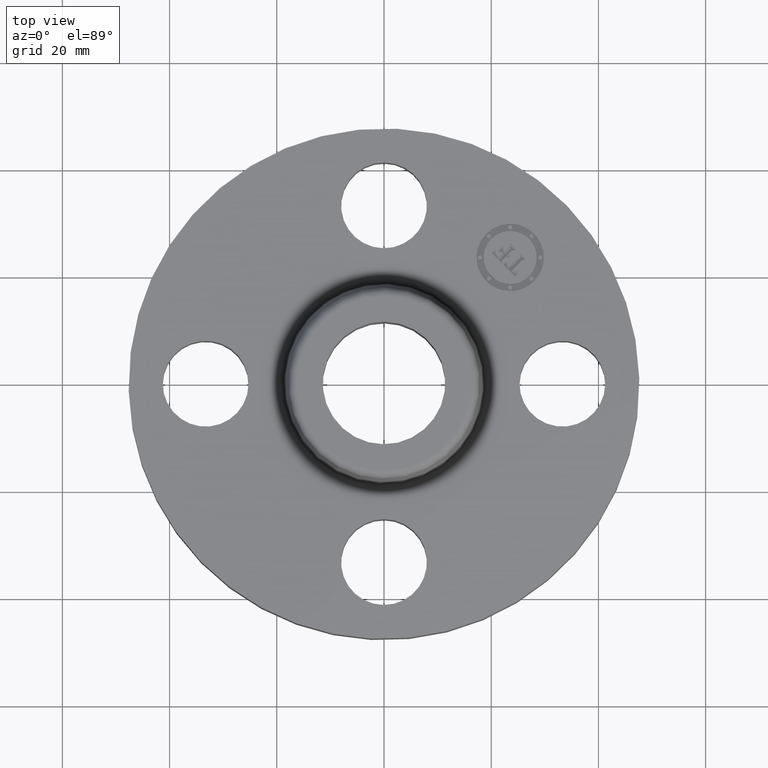
[diagram: clean part render]
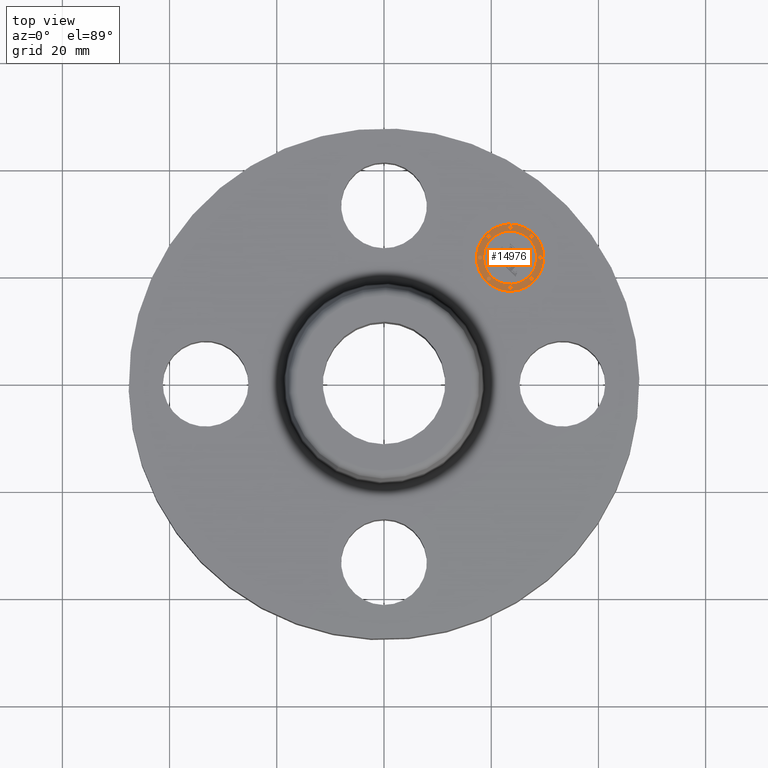
[diagram: same view with one face highlighted and labeled with its STEP entity id]
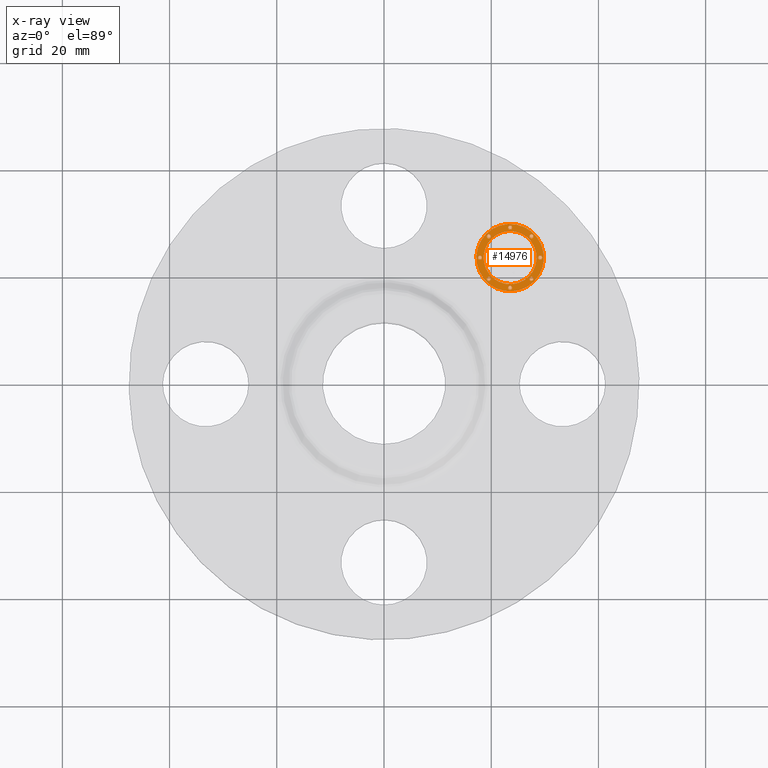
[diagram: x-ray of the same camera — body ghosted, the highlighted face saturated]
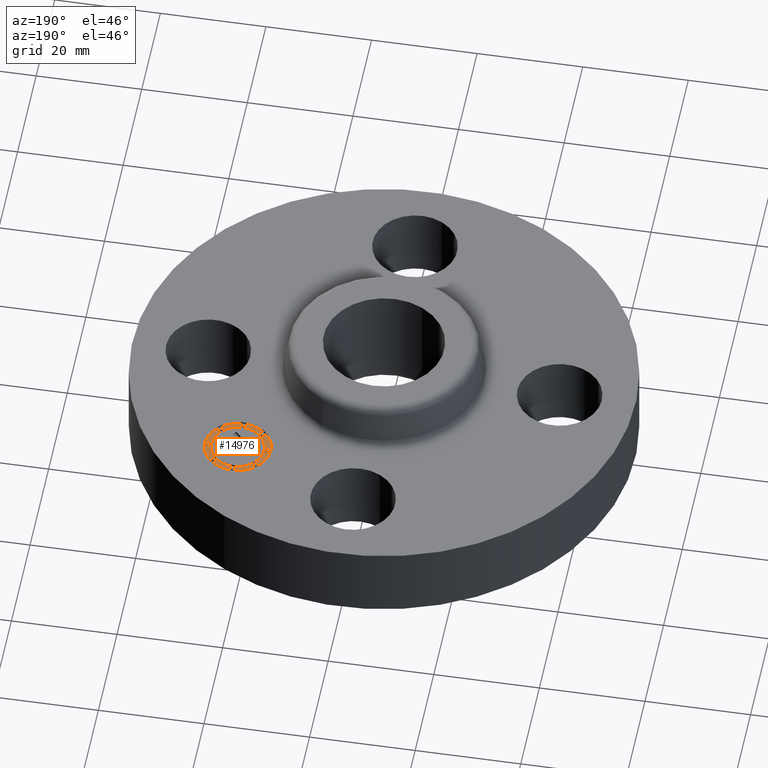
[diagram: same view with one face highlighted and labeled with its STEP entity id]
A machine part, top view. The second image highlights one B-rep face of the part: STEP entity #14976.
The next image is the same camera in x-ray: the body ghosted, the highlighted face saturated — about 0% of this face is hidden behind the body in this view.
A second angle (auxiliary view) of the same face is appended — the face is thin or edge-on in the first view.
In plain terms, the highlighted planar face has unit normal (0, -0, 1).
Its self-contained STEP definition (entity closure, byte-faithful):
#3627=AXIS2_PLACEMENT_3D('Plane Axis2P3D',#3624,#3625,#3626) ;
#14798=AXIS2_PLACEMENT_3D('Circle Axis2P3D',#14796,#14797,$) ;
#14807=AXIS2_PLACEMENT_3D('Circle Axis2P3D',#14805,#14806,$) ;
#14816=AXIS2_PLACEMENT_3D('Circle Axis2P3D',#14814,#14815,$) ;
#14825=AXIS2_PLACEMENT_3D('Circle Axis2P3D',#14823,#14824,$) ;
#14834=AXIS2_PLACEMENT_3D('Circle Axis2P3D',#14832,#14833,$) ;
#14843=AXIS2_PLACEMENT_3D('Circle Axis2P3D',#14841,#14842,$) ;
#14852=AXIS2_PLACEMENT_3D('Circle Axis2P3D',#14850,#14851,$) ;
#14861=AXIS2_PLACEMENT_3D('Circle Axis2P3D',#14859,#14860,$) ;
#14870=AXIS2_PLACEMENT_3D('Circle Axis2P3D',#14868,#14869,$) ;
#14879=AXIS2_PLACEMENT_3D('Circle Axis2P3D',#14877,#14878,$) ;
#14888=AXIS2_PLACEMENT_3D('Circle Axis2P3D',#14886,#14887,$) ;
#14897=AXIS2_PLACEMENT_3D('Circle Axis2P3D',#14895,#14896,$) ;
#14906=AXIS2_PLACEMENT_3D('Circle Axis2P3D',#14904,#14905,$) ;
#14915=AXIS2_PLACEMENT_3D('Circle Axis2P3D',#14913,#14914,$) ;
#14924=AXIS2_PLACEMENT_3D('Circle Axis2P3D',#14922,#14923,$) ;
#14933=AXIS2_PLACEMENT_3D('Circle Axis2P3D',#14931,#14932,$) ;
#14942=AXIS2_PLACEMENT_3D('Circle Axis2P3D',#14940,#14941,$) ;
#14951=AXIS2_PLACEMENT_3D('Circle Axis2P3D',#14949,#14950,$) ;
#14960=AXIS2_PLACEMENT_3D('Circle Axis2P3D',#14958,#14959,$) ;
#14969=AXIS2_PLACEMENT_3D('Circle Axis2P3D',#14967,#14968,$) ;
#3624=CARTESIAN_POINT('Axis2P3D Location',(0.,0.,0.545000000002)) ;
#14796=CARTESIAN_POINT('Axis2P3D Location',(0.926309883358,0.926309883358,0.545000000002)) ;
#14800=CARTESIAN_POINT('Vertex',(0.751300955014,1.1013188117,0.545000000002)) ;
#14802=CARTESIAN_POINT('Vertex',(1.1013188117,0.751300955014,0.545000000002)) ;
#14805=CARTESIAN_POINT('Axis2P3D Location',(0.926309883358,0.926309883358,0.545000000002)) ;
#14814=CARTESIAN_POINT('Axis2P3D Location',(0.926309883358,0.926309883358,0.545000000002)) ;
#14818=CARTESIAN_POINT('Vertex',(1.06419570569,0.788424061026,0.545000000002)) ;
#14820=CARTESIAN_POINT('Vertex',(0.788424061026,1.06419570569,0.545000000002)) ;
#14823=CARTESIAN_POINT('Axis2P3D Location',(0.926309883358,0.926309883358,0.545000000002)) ;
#14832=CARTESIAN_POINT('Axis2P3D Location',(0.76986250802,0.76986250802,0.545000000002)) ;
#14836=CARTESIAN_POINT('Vertex',(0.780469109738,0.759255906302,0.545000000002)) ;
#14838=CARTESIAN_POINT('Vertex',(0.759255906302,0.780469109738,0.545000000002)) ;
#14841=CARTESIAN_POINT('Axis2P3D Location',(0.76986250802,0.76986250802,0.545000000002)) ;
#14850=CARTESIAN_POINT('Axis2P3D Location',(0.76986250802,1.0827572587,0.545000000002)) ;
#14854=CARTESIAN_POINT('Vertex',(0.780469109738,1.07215065698,0.545000000002)) ;
#14856=CARTESIAN_POINT('Vertex',(0.759255906302,1.09336386041,0.545000000002)) ;
#14859=CARTESIAN_POINT('Axis2P3D Location',(0.76986250802,1.0827572587,0.545000000002)) ;
#14868=CARTESIAN_POINT('Axis2P3D Location',(0.705059883357,0.926309883358,0.545000000002)) ;
#14872=CARTESIAN_POINT('Vertex',(0.715666485075,0.91570328164,0.545000000002)) ;
#14874=CARTESIAN_POINT('Vertex',(0.694453281639,0.936916485076,0.545000000002)) ;
#14877=CARTESIAN_POINT('Axis2P3D Location',(0.705059883357,0.926309883358,0.545000000002)) ;
#14886=CARTESIAN_POINT('Axis2P3D Location',(1.0827572587,1.0827572587,0.545000000002)) ;
#14890=CARTESIAN_POINT('Vertex',(1.09336386041,1.07215065698,0.545000000002)) ;
#14892=CARTESIAN_POINT('Vertex',(1.07215065698,1.09336386041,0.545000000002)) ;
#14895=CARTESIAN_POINT('Axis2P3D Location',(1.0827572587,1.0827572587,0.545000000002)) ;
#14904=CARTESIAN_POINT('Axis2P3D Location',(0.926309883358,1.14755988336,0.545000000002)) ;
#14908=CARTESIAN_POINT('Vertex',(0.936916485076,1.13695328164,0.545000000002)) ;
#14910=CARTESIAN_POINT('Vertex',(0.91570328164,1.15816648508,0.545000000002)) ;
#14913=CARTESIAN_POINT('Axis2P3D Location',(0.926309883358,1.14755988336,0.545000000002)) ;
#14922=CARTESIAN_POINT('Axis2P3D Location',(1.0827572587,0.76986250802,0.545000000002)) ;
#14926=CARTESIAN_POINT('Vertex',(1.07215065698,0.780469109738,0.545000000002)) ;
#14928=CARTESIAN_POINT('Vertex',(1.09336386041,0.759255906302,0.545000000002)) ;
#14931=CARTESIAN_POINT('Axis2P3D Location',(1.0827572587,0.76986250802,0.545000000002)) ;
#14940=CARTESIAN_POINT('Axis2P3D Location',(0.926309883358,0.705059883357,0.545000000002)) ;
#14944=CARTESIAN_POINT('Vertex',(0.91570328164,0.715666485075,0.545000000002)) ;
#14946=CARTESIAN_POINT('Vertex',(0.936916485076,0.694453281639,0.545000000002)) ;
#14949=CARTESIAN_POINT('Axis2P3D Location',(0.926309883358,0.705059883357,0.545000000002)) ;
#14958=CARTESIAN_POINT('Axis2P3D Location',(1.14755988336,0.926309883358,0.545000000002)) ;
#14962=CARTESIAN_POINT('Vertex',(1.13695328164,0.936916485076,0.545000000002)) ;
#14964=CARTESIAN_POINT('Vertex',(1.15816648508,0.91570328164,0.545000000002)) ;
#14967=CARTESIAN_POINT('Axis2P3D Location',(1.14755988336,0.926309883358,0.545000000002)) ;
#3625=DIRECTION('Axis2P3D Direction',(0.,-0.,0.0393700787402)) ;
#3626=DIRECTION('Axis2P3D XDirection',(0.027838849653,0.027838849653,0.)) ;
#14797=DIRECTION('Axis2P3D Direction',(0.,-0.,0.0393700787402)) ;
#14806=DIRECTION('Axis2P3D Direction',(0.,-0.,0.0393700787402)) ;
#14815=DIRECTION('Axis2P3D Direction',(0.,-0.,0.0393700787402)) ;
#14824=DIRECTION('Axis2P3D Direction',(0.,-0.,0.0393700787402)) ;
#14833=DIRECTION('Axis2P3D Direction',(0.,-0.,0.0393700787402)) ;
#14842=DIRECTION('Axis2P3D Direction',(0.,-0.,0.0393700787402)) ;
#14851=DIRECTION('Axis2P3D Direction',(0.,-0.,0.0393700787402)) ;
#14860=DIRECTION('Axis2P3D Direction',(0.,-0.,0.0393700787402)) ;
#14869=DIRECTION('Axis2P3D Direction',(0.,-0.,0.0393700787402)) ;
#14878=DIRECTION('Axis2P3D Direction',(0.,-0.,0.0393700787402)) ;
#14887=DIRECTION('Axis2P3D Direction',(0.,-0.,0.0393700787402)) ;
#14896=DIRECTION('Axis2P3D Direction',(0.,-0.,0.0393700787402)) ;
#14905=DIRECTION('Axis2P3D Direction',(0.,-0.,0.0393700787402)) ;
#14914=DIRECTION('Axis2P3D Direction',(0.,-0.,0.0393700787402)) ;
#14923=DIRECTION('Axis2P3D Direction',(0.,-0.,0.0393700787402)) ;
#14932=DIRECTION('Axis2P3D Direction',(0.,-0.,0.0393700787402)) ;
#14941=DIRECTION('Axis2P3D Direction',(0.,-0.,0.0393700787402)) ;
#14950=DIRECTION('Axis2P3D Direction',(0.,-0.,0.0393700787402)) ;
#14959=DIRECTION('Axis2P3D Direction',(0.,-0.,0.0393700787402)) ;
#14968=DIRECTION('Axis2P3D Direction',(0.,-0.,0.0393700787402)) ;
#14811=ORIENTED_EDGE('',*,*,#14804,.T.) ;
#14812=ORIENTED_EDGE('',*,*,#14809,.T.) ;
#14829=ORIENTED_EDGE('',*,*,#14822,.F.) ;
#14830=ORIENTED_EDGE('',*,*,#14827,.F.) ;
#14847=ORIENTED_EDGE('',*,*,#14840,.F.) ;
#14848=ORIENTED_EDGE('',*,*,#14845,.F.) ;
#14865=ORIENTED_EDGE('',*,*,#14858,.F.) ;
#14866=ORIENTED_EDGE('',*,*,#14863,.F.) ;
#14883=ORIENTED_EDGE('',*,*,#14876,.F.) ;
#14884=ORIENTED_EDGE('',*,*,#14881,.F.) ;
#14901=ORIENTED_EDGE('',*,*,#14894,.F.) ;
#14902=ORIENTED_EDGE('',*,*,#14899,.F.) ;
#14919=ORIENTED_EDGE('',*,*,#14912,.F.) ;
#14920=ORIENTED_EDGE('',*,*,#14917,.F.) ;
#14937=ORIENTED_EDGE('',*,*,#14930,.F.) ;
#14938=ORIENTED_EDGE('',*,*,#14935,.F.) ;
#14955=ORIENTED_EDGE('',*,*,#14948,.F.) ;
#14956=ORIENTED_EDGE('',*,*,#14953,.F.) ;
#14973=ORIENTED_EDGE('',*,*,#14966,.F.) ;
#14974=ORIENTED_EDGE('',*,*,#14971,.F.) ;
#14831=FACE_BOUND('',#14828,.T.) ;
#14849=FACE_BOUND('',#14846,.T.) ;
#14867=FACE_BOUND('',#14864,.T.) ;
#14885=FACE_BOUND('',#14882,.T.) ;
#14903=FACE_BOUND('',#14900,.T.) ;
#14921=FACE_BOUND('',#14918,.T.) ;
#14939=FACE_BOUND('',#14936,.T.) ;
#14957=FACE_BOUND('',#14954,.T.) ;
#14975=FACE_BOUND('',#14972,.T.) ;
#14976=ADVANCED_FACE('PartBody',(#14813,#14831,#14849,#14867,#14885,#14903,#14921,#14939,#14957,#14975),#3628,.T.) ;
#14799=CIRCLE('generated circle',#14798,0.247500000001) ;
#14808=CIRCLE('generated circle',#14807,0.247500000001) ;
#14817=CIRCLE('generated circle',#14816,0.195000000001) ;
#14826=CIRCLE('generated circle',#14825,0.195000000001) ;
#14835=CIRCLE('generated circle',#14834,0.0150000000001) ;
#14844=CIRCLE('generated circle',#14843,0.0150000000001) ;
#14853=CIRCLE('generated circle',#14852,0.0150000000001) ;
#14862=CIRCLE('generated circle',#14861,0.0150000000001) ;
#14871=CIRCLE('generated circle',#14870,0.0150000000001) ;
#14880=CIRCLE('generated circle',#14879,0.0150000000001) ;
#14889=CIRCLE('generated circle',#14888,0.0150000000001) ;
#14898=CIRCLE('generated circle',#14897,0.0150000000001) ;
#14907=CIRCLE('generated circle',#14906,0.0150000000001) ;
#14916=CIRCLE('generated circle',#14915,0.0150000000001) ;
#14925=CIRCLE('generated circle',#14924,0.0150000000001) ;
#14934=CIRCLE('generated circle',#14933,0.0150000000001) ;
#14943=CIRCLE('generated circle',#14942,0.0150000000001) ;
#14952=CIRCLE('generated circle',#14951,0.0150000000001) ;
#14961=CIRCLE('generated circle',#14960,0.0150000000001) ;
#14970=CIRCLE('generated circle',#14969,0.0150000000001) ;
#14804=EDGE_CURVE('',#14801,#14803,#14799,.T.) ;
#14809=EDGE_CURVE('',#14803,#14801,#14808,.T.) ;
#14822=EDGE_CURVE('',#14819,#14821,#14817,.T.) ;
#14827=EDGE_CURVE('',#14821,#14819,#14826,.T.) ;
#14840=EDGE_CURVE('',#14837,#14839,#14835,.T.) ;
#14845=EDGE_CURVE('',#14839,#14837,#14844,.T.) ;
#14858=EDGE_CURVE('',#14855,#14857,#14853,.T.) ;
#14863=EDGE_CURVE('',#14857,#14855,#14862,.T.) ;
#14876=EDGE_CURVE('',#14873,#14875,#14871,.T.) ;
#14881=EDGE_CURVE('',#14875,#14873,#14880,.T.) ;
#14894=EDGE_CURVE('',#14891,#14893,#14889,.T.) ;
#14899=EDGE_CURVE('',#14893,#14891,#14898,.T.) ;
#14912=EDGE_CURVE('',#14909,#14911,#14907,.T.) ;
#14917=EDGE_CURVE('',#14911,#14909,#14916,.T.) ;
#14930=EDGE_CURVE('',#14927,#14929,#14925,.T.) ;
#14935=EDGE_CURVE('',#14929,#14927,#14934,.T.) ;
#14948=EDGE_CURVE('',#14945,#14947,#14943,.T.) ;
#14953=EDGE_CURVE('',#14947,#14945,#14952,.T.) ;
#14966=EDGE_CURVE('',#14963,#14965,#14961,.T.) ;
#14971=EDGE_CURVE('',#14965,#14963,#14970,.T.) ;
#14810=EDGE_LOOP('',(#14811,#14812)) ;
#14828=EDGE_LOOP('',(#14829,#14830)) ;
#14846=EDGE_LOOP('',(#14847,#14848)) ;
#14864=EDGE_LOOP('',(#14865,#14866)) ;
#14882=EDGE_LOOP('',(#14883,#14884)) ;
#14900=EDGE_LOOP('',(#14901,#14902)) ;
#14918=EDGE_LOOP('',(#14919,#14920)) ;
#14936=EDGE_LOOP('',(#14937,#14938)) ;
#14954=EDGE_LOOP('',(#14955,#14956)) ;
#14972=EDGE_LOOP('',(#14973,#14974)) ;
#14813=FACE_OUTER_BOUND('',#14810,.T.) ;
#3628=PLANE('',#3627) ;
#14801=VERTEX_POINT('',#14800) ;
#14803=VERTEX_POINT('',#14802) ;
#14819=VERTEX_POINT('',#14818) ;
#14821=VERTEX_POINT('',#14820) ;
#14837=VERTEX_POINT('',#14836) ;
#14839=VERTEX_POINT('',#14838) ;
#14855=VERTEX_POINT('',#14854) ;
#14857=VERTEX_POINT('',#14856) ;
#14873=VERTEX_POINT('',#14872) ;
#14875=VERTEX_POINT('',#14874) ;
#14891=VERTEX_POINT('',#14890) ;
#14893=VERTEX_POINT('',#14892) ;
#14909=VERTEX_POINT('',#14908) ;
#14911=VERTEX_POINT('',#14910) ;
#14927=VERTEX_POINT('',#14926) ;
#14929=VERTEX_POINT('',#14928) ;
#14945=VERTEX_POINT('',#14944) ;
#14947=VERTEX_POINT('',#14946) ;
#14963=VERTEX_POINT('',#14962) ;
#14965=VERTEX_POINT('',#14964) ;